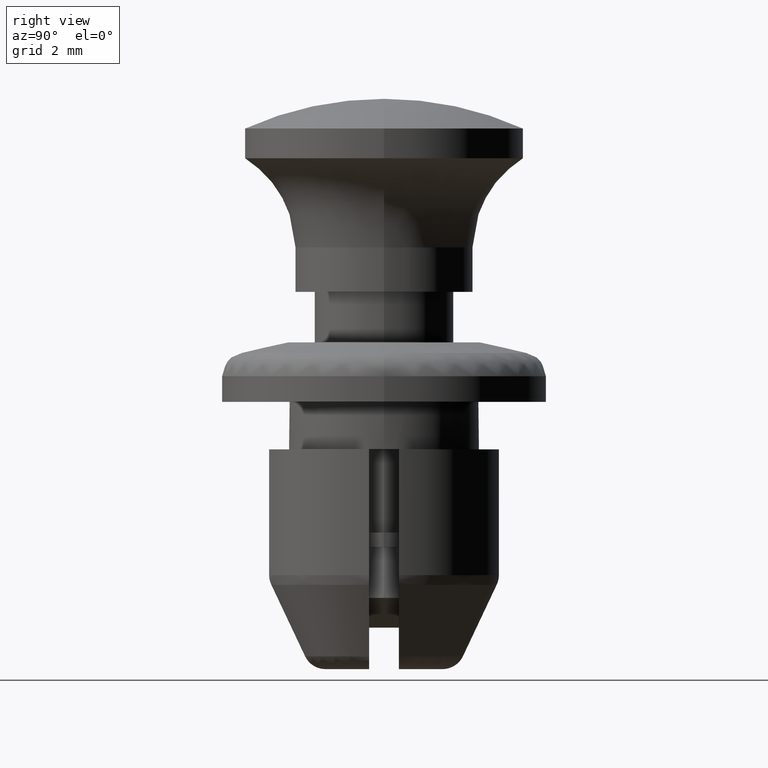
[diagram: clean part render]
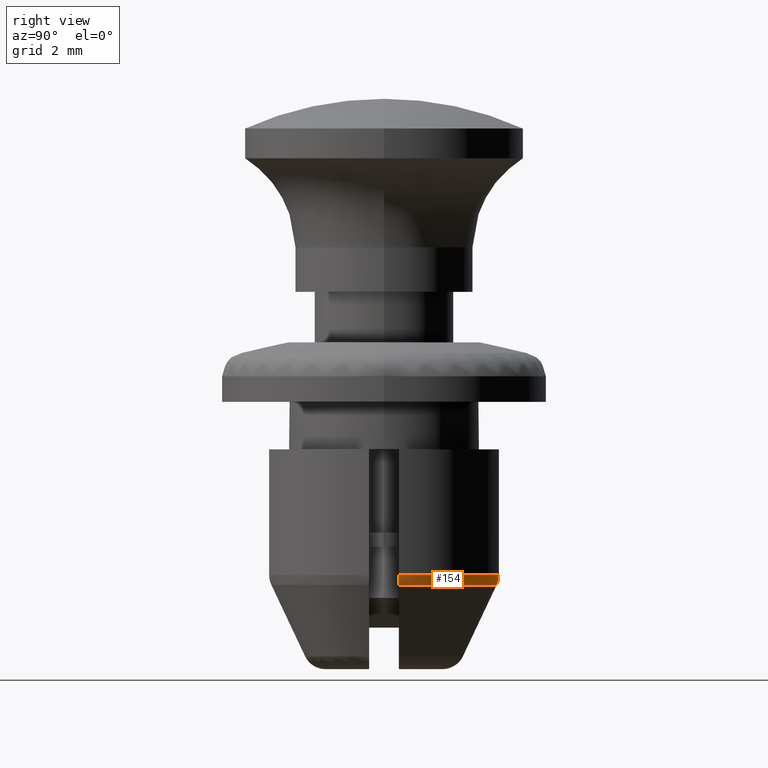
[diagram: same view with one face highlighted and labeled with its STEP entity id]
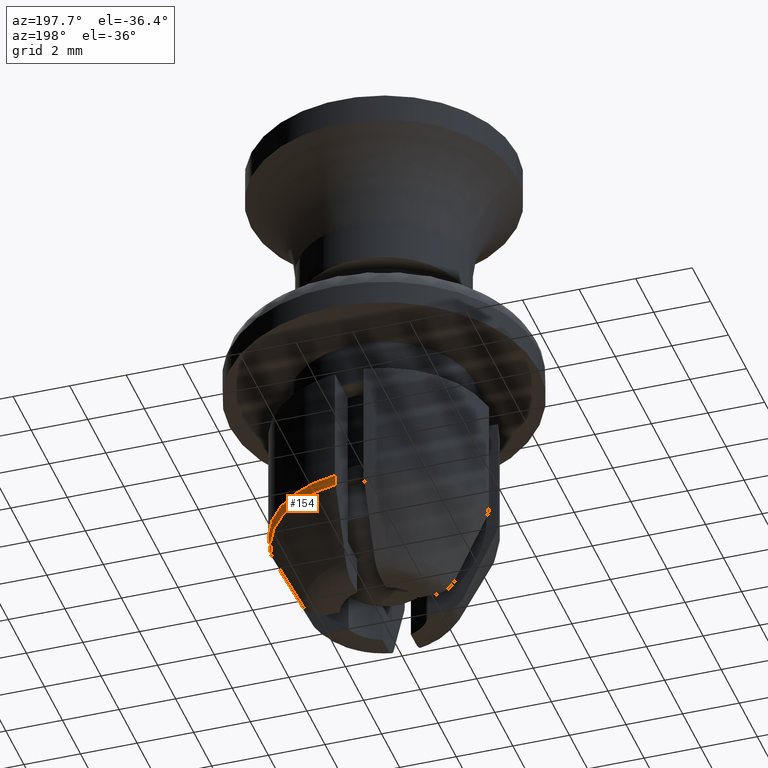
[diagram: same view with one face highlighted and labeled with its STEP entity id]
A machine part, right view. The second image highlights one B-rep face of the part: STEP entity #154.
A second angle (auxiliary view) of the same face is appended — the face is thin or edge-on in the first view.
In plain terms, the highlighted face is a freeform B-spline surface patch.
Its self-contained STEP definition (entity closure, byte-faithful):
#154=ADVANCED_FACE('',(#615),#614,.T.);
#614=( BOUNDED_SURFACE() B_SPLINE_SURFACE( 2,2,((#1276,#1277,#1278),(#1279,#1280,#1281),(#1282,#1283,#1284)), .UNSPECIFIED.,.F.,.F.,.F.) B_SPLINE_SURFACE_WITH_KNOTS((3,3),(3,3),(-4.16385416755E-05,4.54788848501E-01),(5.44145138974E-02,1.35762375326E+00), .UNSPECIFIED. ) GEOMETRIC_REPRESENTATION_ITEM() RATIONAL_B_SPLINE_SURFACE(((9.82285952697E-01,7.78665272687E-01,9.82286885682E-01),(9.25125939104E-01,7.33354111056E-01,9.25126817798E-01),(9.17617354995E-01,7.27402001411E-01,9.17618226557E-01))) REPRESENTATION_ITEM('') SURFACE() );
#615=FACE_OUTER_BOUND('',#1285,.T.);
#1276=CARTESIAN_POINT('',(3.86717288997E+00,5.04949338049E-01,-7.83396877109E+00));
#1277=CARTESIAN_POINT('',(3.47885968334E+00,3.47886016898E+00,-7.83396877109E+00));
#1278=CARTESIAN_POINT('',(5.04948798206E-01,3.86717296046E+00,-7.83396877109E+00));
#1279=CARTESIAN_POINT('',(3.86718003021E+00,5.04950270373E-01,-8.00690589039E+00));
#1280=CARTESIAN_POINT('',(3.47886610661E+00,3.47886659225E+00,-8.00690589039E+00));
#1281=CARTESIAN_POINT('',(5.04949730529E-01,3.86718010070E+00,-8.00690589039E+00));
#1282=CARTESIAN_POINT('',(3.79209744979E+00,4.95146493723E-01,-8.16238495445E+00));
#1283=CARTESIAN_POINT('',(3.41132276956E+00,3.41132324577E+00,-8.16238495445E+00));
#1284=CARTESIAN_POINT('',(4.95145964360E-01,3.79209751891E+00,-8.16238495445E+00));
#1285=EDGE_LOOP('',(#1808,#1809,#1810,#1811));
#1808=ORIENTED_EDGE('',*,*,#2129,.F.);
#1809=ORIENTED_EDGE('',*,*,#2025,.T.);
#1810=ORIENTED_EDGE('',*,*,#2075,.T.);
#1811=ORIENTED_EDGE('',*,*,#2037,.T.);
#2025=EDGE_CURVE('',#2383,#2376,#2384,.T.);
#2037=EDGE_CURVE('',#2467,#2460,#2468,.T.);
#2075=EDGE_CURVE('',#2376,#2467,#2721,.T.);
#2129=EDGE_CURVE('',#2383,#2460,#3072,.T.);
#2376=VERTEX_POINT('',#3616);
#2383=VERTEX_POINT('',#3620);
#2384=(BOUNDED_CURVE() B_SPLINE_CURVE(3,(#3621,#3622,#3623,#3624,#3625,#3626),.UNSPECIFIED.,.F.,.F.) B_SPLINE_CURVE_WITH_KNOTS((4,2,4),(1.86419617907E-03,2.03361510426E-03,2.20303402944E-03),.UNSPECIFIED.) CURVE() GEOMETRIC_REPRESENTATION_ITEM() RATIONAL_B_SPLINE_CURVE((1.00000000000E+00,1.00000000000E+00,1.00000000000E+00,1.00000000000E+00,1.00000000000E+00,1.00000000000E+00)) REPRESENTATION_ITEM('') );
#2460=VERTEX_POINT('',#3674);
#2467=VERTEX_POINT('',#3679);
#2468=(BOUNDED_CURVE() B_SPLINE_CURVE(3,(#3680,#3681,#3682,#3683,#3684,#3685),.UNSPECIFIED.,.F.,.F.) B_SPLINE_CURVE_WITH_KNOTS((4,2,4),(2.51939268983E-03,2.68851183718E-03,2.85763098452E-03),.UNSPECIFIED.) CURVE() GEOMETRIC_REPRESENTATION_ITEM() RATIONAL_B_SPLINE_CURVE((1.00000000000E+00,1.00000000000E+00,1.00000000000E+00,1.00000000000E+00,1.00000000000E+00,1.00000000000E+00)) REPRESENTATION_ITEM('') );
#2721=CIRCLE('',#3852,3.90000000000E+00);
#3072=CIRCLE('',#4089,3.82428734418E+00);
#3616=CARTESIAN_POINT('',(5.00000000000E-01,3.86781592116E+00,-7.83400000000E+00));
#3620=CARTESIAN_POINT('',(5.00000000000E-01,3.79146062764E+00,-8.16238480092E+00));
#3621=CARTESIAN_POINT('',(5.00000000000E-01,3.79146062763E+00,-8.16238480092E+00));
#3622=CARTESIAN_POINT('',(5.00000000000E-01,3.81640532658E+00,-8.11160438406E+00));
#3623=CARTESIAN_POINT('',(5.00000000000E-01,3.83548111475E+00,-8.05837975117E+00));
#3624=CARTESIAN_POINT('',(5.00000000000E-01,3.86143044740E+00,-7.94684863619E+00));
#3625=CARTESIAN_POINT('',(5.00000000000E-01,3.86781592116E+00,-7.89056298747E+00));
#3626=CARTESIAN_POINT('',(5.00000000000E-01,3.86781592116E+00,-7.83400000000E+00));
#3674=CARTESIAN_POINT('',(3.79146062763E+00,5.00000000000E-01,-8.16238480092E+00));
#3679=CARTESIAN_POINT('',(3.86781592116E+00,5.00000000000E-01,-7.83400000000E+00));
#3680=CARTESIAN_POINT('',(3.86781592116E+00,5.00000000000E-01,-7.83400000000E+00));
#3681=CARTESIAN_POINT('',(3.86781592116E+00,5.00000000000E-01,-7.89106722683E+00));
#3682=CARTESIAN_POINT('',(3.86128336600E+00,5.00000000000E-01,-7.94739456207E+00));
#3683=CARTESIAN_POINT('',(3.83574470196E+00,5.00000000000E-01,-8.05733268714E+00));
#3684=CARTESIAN_POINT('',(3.81636238245E+00,5.00000000000E-01,-8.11169180628E+00));
#3685=CARTESIAN_POINT('',(3.79146062763E+00,5.00000000000E-01,-8.16238480092E+00));
#3849=CARTESIAN_POINT('',(0.00000000000E+00,0.00000000000E+00,-7.83400000000E+00));
#3850=DIRECTION('',(0.00000000000E+00,0.00000000000E+00,-1.00000000000E+00));
#3851=DIRECTION('',(1.00000000000E+00,-0.00000000000E+00,-0.00000000000E+00));
#3852=AXIS2_PLACEMENT_3D('',#3849,#3850,#3851);
#4086=CARTESIAN_POINT('',(0.00000000000E+00,0.00000000000E+00,-8.16238480092E+00));
#4087=DIRECTION('',(0.00000000000E+00,0.00000000000E+00,-1.00000000000E+00));
#4088=DIRECTION('',(1.00000000000E+00,-0.00000000000E+00,-0.00000000000E+00));
#4089=AXIS2_PLACEMENT_3D('',#4086,#4087,#4088);